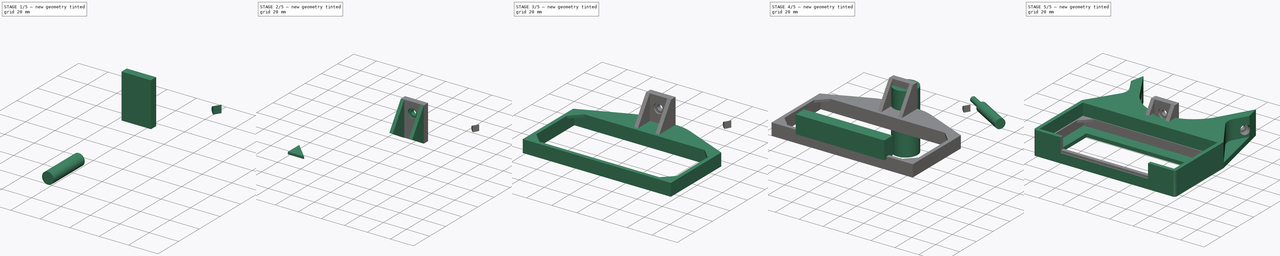
[diagram: build sequence overview — one tinted view per stage of 5, left to right]
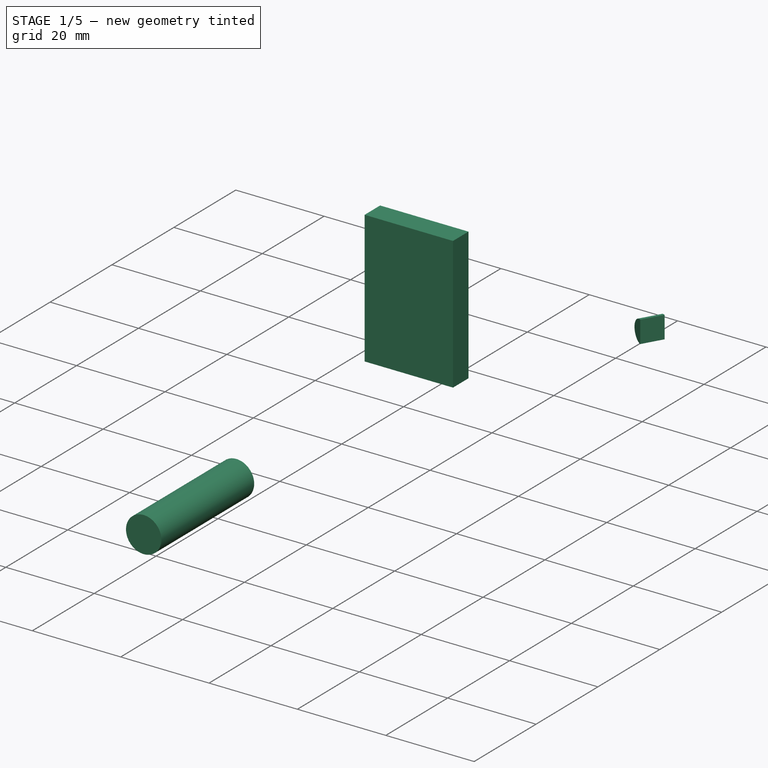
[diagram: stage 1 of 5 — iso view after this stage's code; geometry added in this stage tinted green]
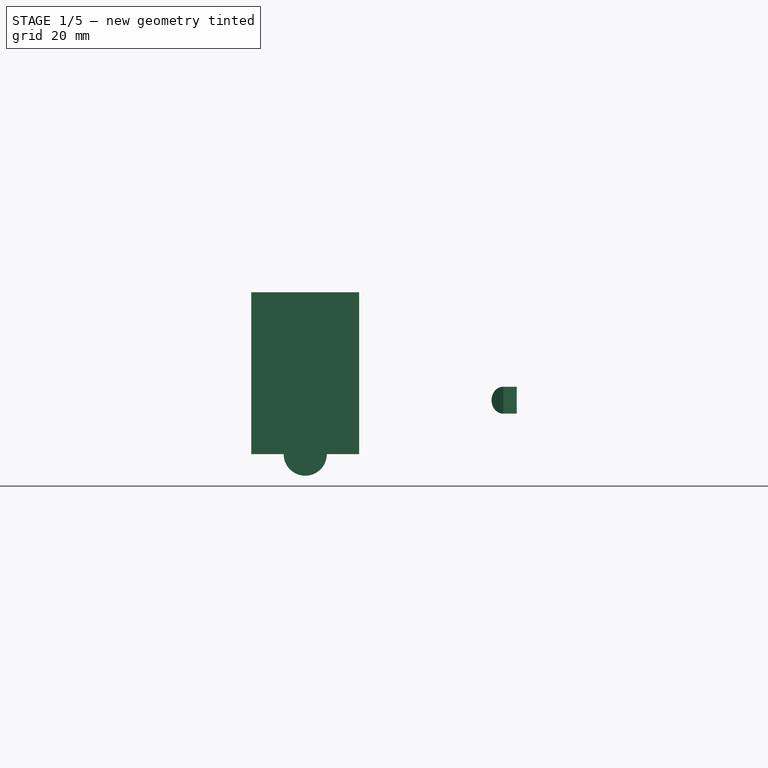
[diagram: stage 1 of 5 — front view after this stage's code; geometry added in this stage tinted green]
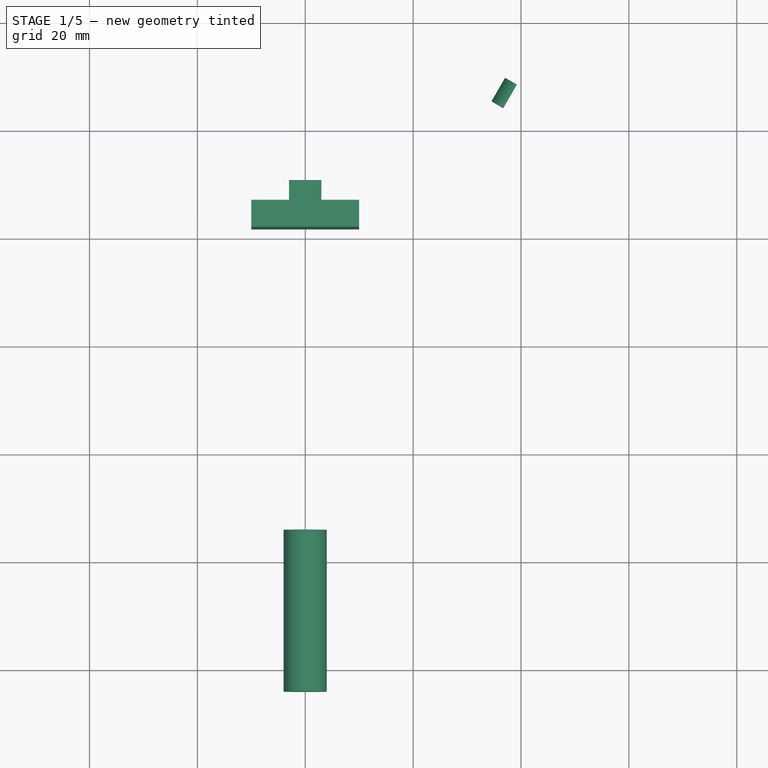
[diagram: stage 1 of 5 — top view after this stage's code; geometry added in this stage tinted green]
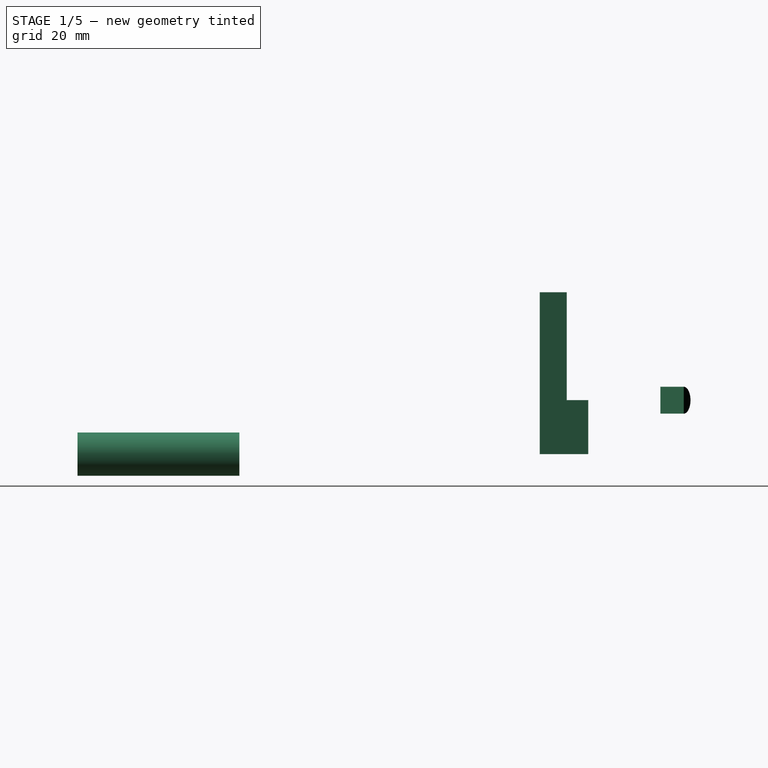
[diagram: stage 1 of 5 — right view after this stage's code; geometry added in this stage tinted green]
FCSTD DOCUMENT  (FreeCAD 0.19R)
Label: psu_holder
License: All rights reserved
LicenseURL: http://en.wikipedia.org/wiki/All_rights_reserved
objects: Part::Box×8, Part::MultiFuse×8, PartDesign::Body×6, Sketcher::SketchObject×5, PartDesign::Pad×5, PartDesign::ShapeBinder×4, Part::Cylinder×4, Part::Mirroring×4, Part::Cut×3, Part::FeaturePython×2, Part::Compound×2, App::Part×2, Spreadsheet::Sheet×1, Part::Fillet×1, PartDesign::FeatureBase×1
note: 56 computed .brp shape members not serialized (recipe doc carries the construction recipe); baked Part::Feature solids carry a one-line shape summary decoded from their .brp

FEATURE [Part::Cylinder] Cylinder001  label="bolt head hole"
  Angle = 360
  AttacherType = Attacher::AttachEngine3D
  Height = 30
  Placement = pos=(0,-14,4e-15) rot=(1,0,0;1.5708rad)
  Radius = 4
  expr: Radius = <<p>>.bolt_head_r
FEATURE [Part::Box] Box004  label="middle external"
  AttacherType = Attacher::AttachEngine3D
  Height = 10
  Length = 118
  Placement = pos=(-59,-28.7,0) rot=(0,0,1;0rad)
  Width = 57.4
  expr: Length = <<p>>.wall * 2 + <<p>>.middle_x
  expr: Width = <<p>>.wall * 2 + <<p>>.middle_y
  expr: .Placement.Base.y = -Width / 2
  expr: .Placement.Base.x = -Length / 2
FEATURE [Part::Box] Box006  label="middle attach cube"
  AttacherType = Attacher::AttachEngine3D
  Height = 30
  Length = 20
  Placement = pos=(-10,0,0) rot=(0,0,1;0rad)
  Width = 5
  expr: Height = <<p>>.middle_attach_height
  expr: .Placement.Base.x = -Length / 2
FEATURE [PartDesign::Body] Body005  label="bolt fusion clone"
  BaseFeature = -> Fusion002
  Group = -> [Clone]
  Origin = -> Origin008
  Placement = pos=(0,57,21) rot=(0,0,1;0rad)
  Tip = -> Clone
FEATURE [Part::Box] Box007  label="middle frame cube"
  AttacherType = Attacher::AttachEngine3D
  Height = 10
  Length = 6
  Placement = pos=(-3,5,0) rot=(0,0,1;0rad)
  Width = 4
  expr: .Placement.Base.y = <<middle attach cube>>.Width
  expr: .Placement.Base.x = -Length / 2
  expr: Height = <<middle external>>.Height
FEATURE [Part::MultiFuse] Fusion008  label="middle attachment fusion"
  Placement = pos=(0,41.7,0) rot=(0,0,1;0rad)
  Shapes = -> [Box007,Box006]
  expr: .Placement.Base.y = <<middle external>>.Width / 2 + <<p>>.middle_frame_dist - <<middle attach cube>>.Width
FEATURE [App::Part] Part001  label="middle part"
  Group = -> [Cut,Body002,Body003,Fusion007,Fusion006,Box004,Box005,Fusion004,Part__Mirroring002,Part__Mirroring001,Fusion005]
  Origin = -> Origin003
FEATURE [Part::Cylinder] Cylinder003  label="frame cylinder"
  Angle = 180
  AttacherType = Attacher::AttachEngine3D
  Height = 5
  Placement = pos=(0,0,0) rot=(0,1,0;1.5708rad)
  Radius = 2.5
FEATURE [Part::Compound] Compound002  label="bolt hole array compound001"
  Links = -> [Cylinder003]
  Placement = pos=(-39.21,68.3921,10) rot=(0,0,-1;1.0472rad)
FEATURE [Part::Mirroring] Part__Mirroring003  label="bolt hole array compound001 (Mirror #4)"
  Base = (0,0,0)
  Normal = (1,0,0)
  Source = -> Compound002
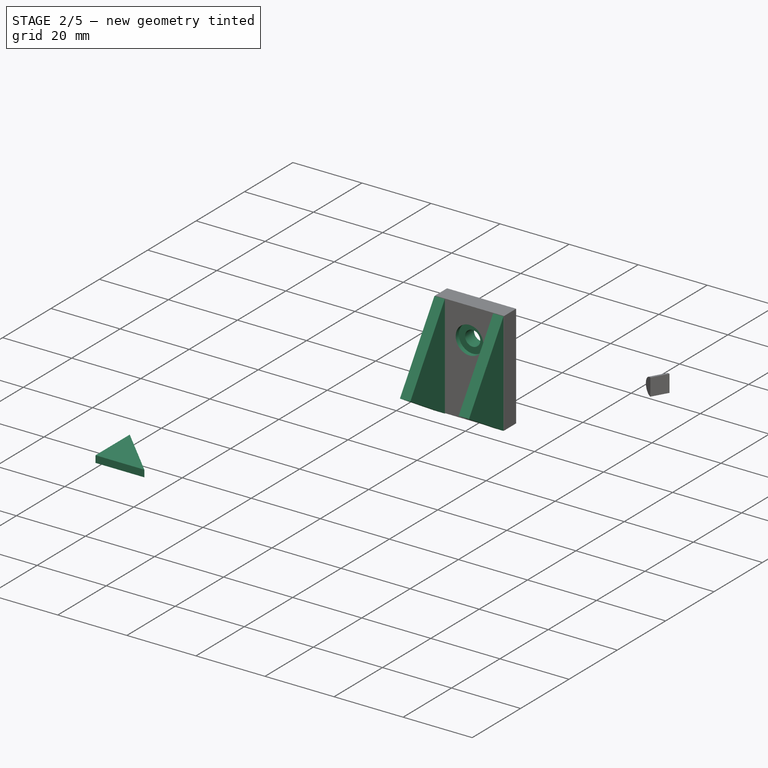
[diagram: stage 2 of 5 — iso view after this stage's code; geometry added in this stage tinted green]
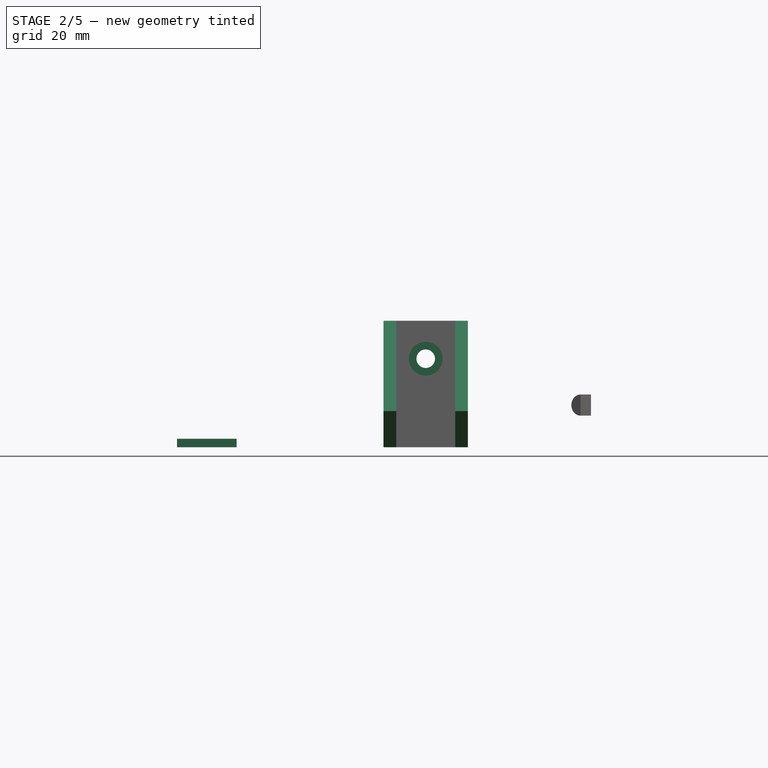
[diagram: stage 2 of 5 — front view after this stage's code; geometry added in this stage tinted green]
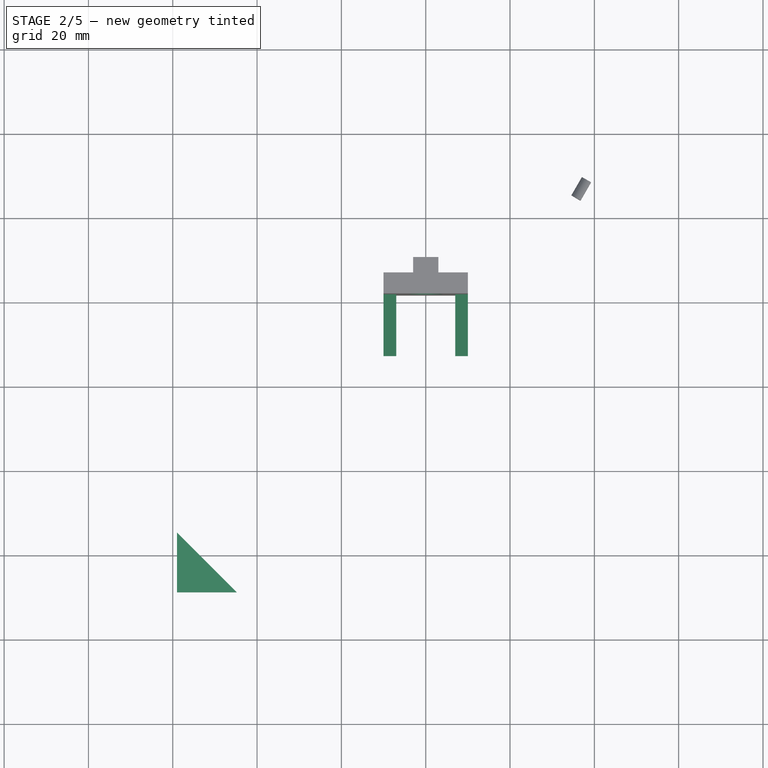
[diagram: stage 2 of 5 — top view after this stage's code; geometry added in this stage tinted green]
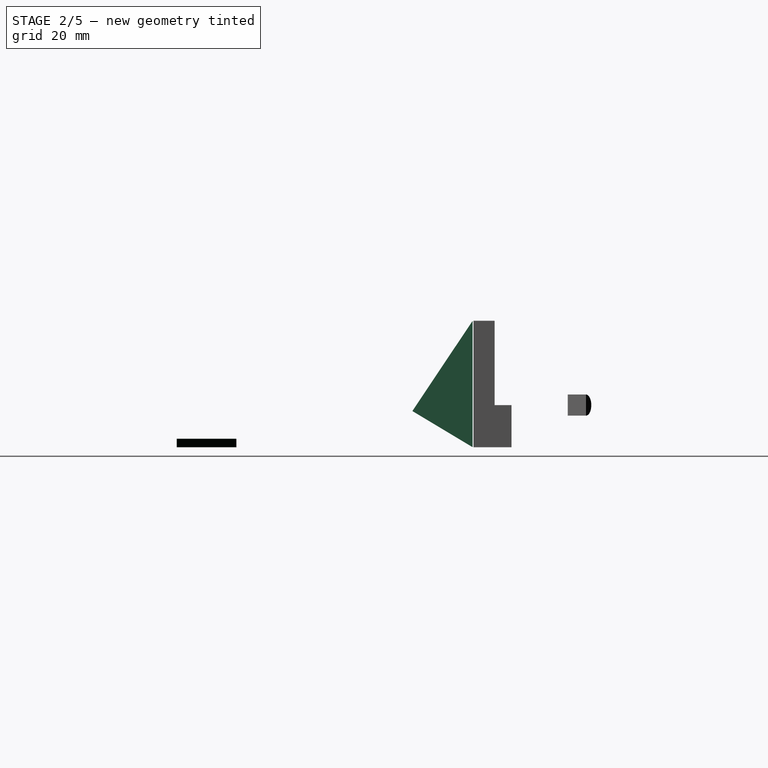
[diagram: stage 2 of 5 — right view after this stage's code; geometry added in this stage tinted green]
FEATURE [Part::Cylinder] Cylinder  label="bolt hole"
  Angle = 360
  AttacherType = Attacher::AttachEngine3D
  Height = 30
  Placement = pos=(0,0,0) rot=(1,0,0;1.5708rad)
  Radius = 2.2
  expr: Radius = <<p>>.bolt_hole_r
FEATURE [Part::MultiFuse] Fusion002  label="bolt hole fusion"
  Shapes = -> [Cylinder,Cylinder001]
FEATURE [PartDesign::Body] Body002  label="middle attach body"
  Group = -> [Sketch002,ShapeBinder001,Pad002]
  Origin = -> Origin005
  Tip = -> Pad002
FEATURE [PartDesign::ShapeBinder] ShapeBinder002
  Support = -> [Box004]
  TraceSupport = false
FEATURE [Sketcher::SketchObject] Sketch003
  ExternalGeometry = -> [ShapeBinder002]
  FullyConstrained = true
  MapMode = 5
  Support = -> [XY_Plane006]
  sketch-geometry (3):
    g0: LineSegment StartX=-59 StartY=-28.7 StartZ=0 EndX=-44.8579 EndY=-28.7 EndZ=0
    g1: LineSegment StartX=-44.8579 StartY=-28.7 StartZ=0 EndX=-59 EndY=-14.5579 EndZ=0
    g2: LineSegment StartX=-59 StartY=-14.5579 StartZ=0 EndX=-59 EndY=-28.7 EndZ=0
  constraints (8):
    c: Horizontal(g0)
    c: Coincident(g1,g0)
    c: Coincident(g2,g1)
    c: Coincident(g2,g0)
    c: Distance(g1) = 20
    c: Equal(g0,g2)
    c: PointOnObject(g1,g-5)
    c: Coincident(g0,g-5)
FEATURE [PartDesign::Pad] Pad003
  Direction = (1,1,1)
  Length = 2
  Length2 = 100
  Profile = -> Sketch003
  Type = 0
FEATURE [PartDesign::FeatureBase] Clone
  BaseFeature = -> Fusion002
FEATURE [PartDesign::ShapeBinder] ShapeBinder003
  Placement = pos=(0,41.7,0) rot=(0,0,1;0rad)
  Support = -> [Fusion008]
  TraceSupport = false
FEATURE [Sketcher::SketchObject] Sketch004
  ExternalGeometry = -> [ShapeBinder003]
  FullyConstrained = false
  MapMode = 5
  Placement = pos=(0,0,0) rot=(0.57735,0.57735,0.57735;2.0944rad)
  Support = -> [YZ_Plane007]
  sketch-geometry (3):
    g0: LineSegment StartX=41.5 StartY=30 StartZ=0 EndX=27.205 EndY=8.57962 EndZ=0
    g1: LineSegment StartX=27.205 StartY=8.57962 StartZ=0 EndX=41.5 EndY=0 EndZ=0
    g2: LineSegment StartX=41.5 StartY=0 StartZ=0 EndX=41.5 EndY=30 EndZ=0
  constraints (1):
    c: Coincident(g1,g0)
FEATURE [PartDesign::Pad] Pad004
  Direction = (1,1,1)
  Length = 3
  Length2 = 100
  Placement = pos=(0,0,0) rot=(0.57735,0.57735,0.57735;2.0944rad)
  Profile = -> Sketch004
  Type = 0
FEATURE [PartDesign::Body] Body004
  Group = -> [Sketch004,ShapeBinder003,Pad004]
  Origin = -> Origin007
  Tip = -> Pad004
FEATURE [Part::FeaturePython] Array001  label="triangles array"  # Draft array (typed FeaturePython)
  Angle = 360
  ArrayType = 0
  Axis = (0,0,1)
  Base = -> Body004
  Center = (0,0,0)
  Count = 2
  ExpandArray = false
  Fuse = false
  IntervalAxis = (0,0,0)
  IntervalX = (17,0,0)
  IntervalY = (0,100,0)
  IntervalZ = (0,0,100)
  NumberCircles = 3
  NumberPolar = 5
  NumberX = 2
  NumberY = 1
  NumberZ = 1
  Placement = pos=(-10,0,0) rot=(0,0,1;0rad)
  PlacementList = 2 placements: [(0,0,0),(17,0,0)]
  RadialDistance = 50
  ScaleList = (2) [(1,1,1),(1,1,1)]
  Symmetry = 1
  TangentialDistance = 25
FEATURE [Part::Cut] Cut002  label="middle attach cut"
  Base = -> Fusion008
  Tool = -> Body005
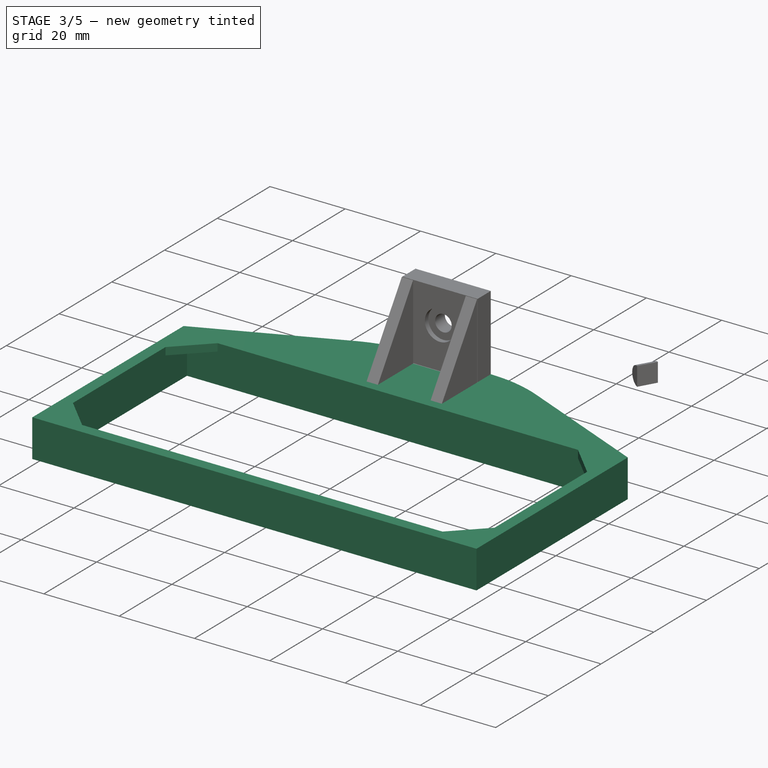
[diagram: stage 3 of 5 — iso view after this stage's code; geometry added in this stage tinted green]
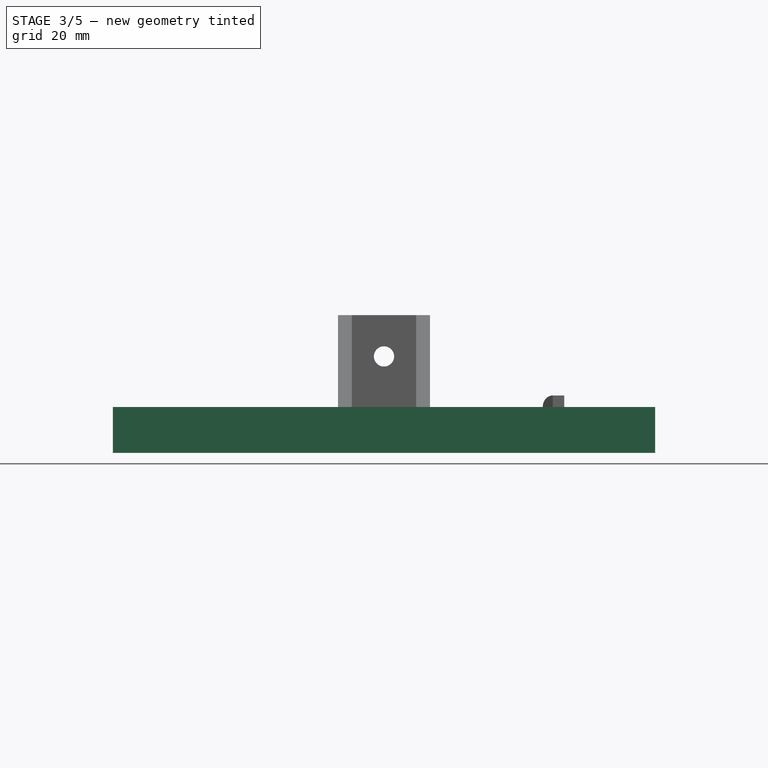
[diagram: stage 3 of 5 — front view after this stage's code; geometry added in this stage tinted green]
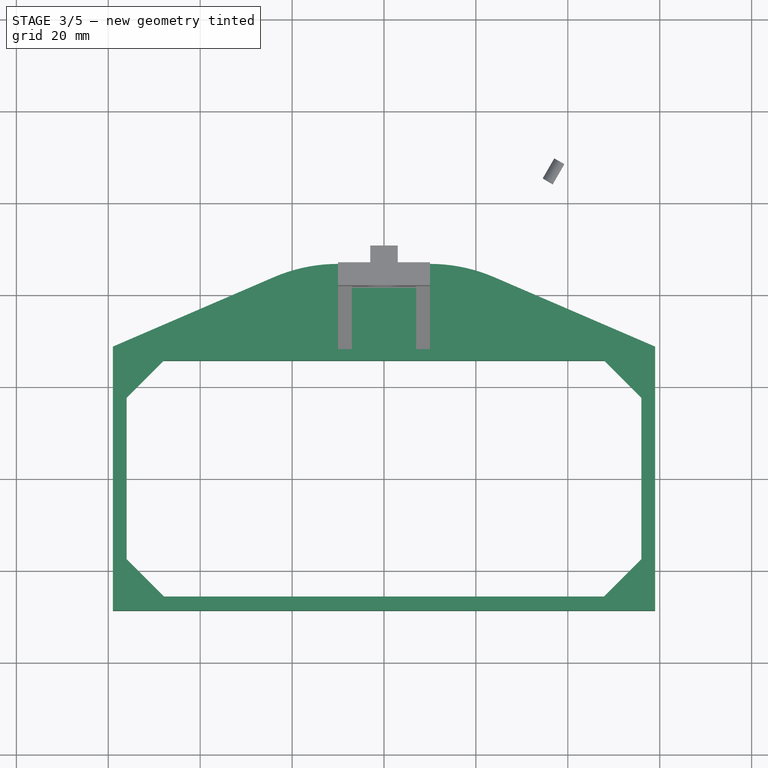
[diagram: stage 3 of 5 — top view after this stage's code; geometry added in this stage tinted green]
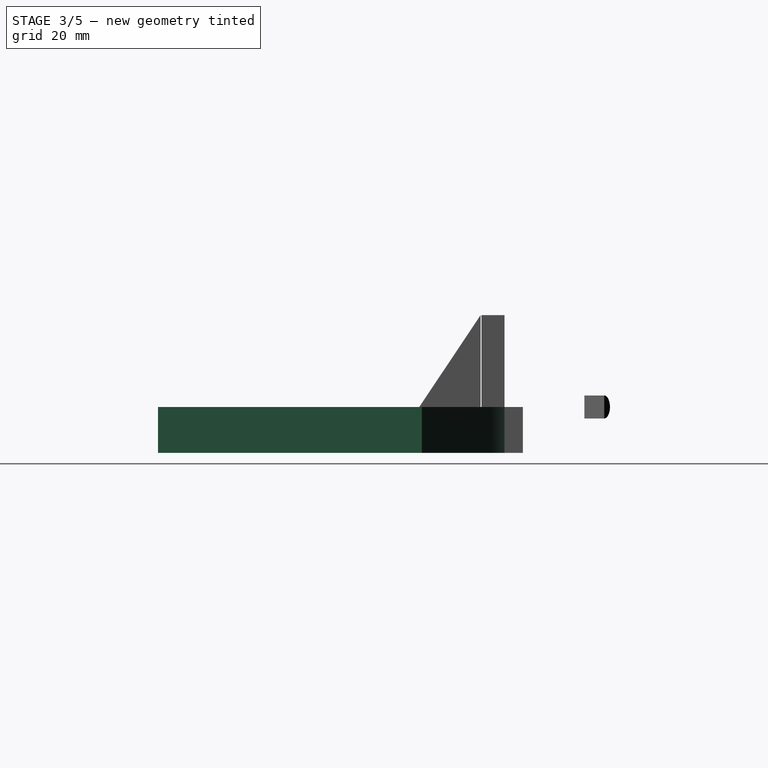
[diagram: stage 3 of 5 — right view after this stage's code; geometry added in this stage tinted green]
FEATURE [Part::Box] Box005  label="middle pocket cube"
  AttacherType = Attacher::AttachEngine3D
  Height = 10
  Length = 112
  Placement = pos=(-56,-25.7,0) rot=(0,0,1;0rad)
  Width = 51.4
  expr: Length = <<p>>.middle_x
  expr: Width = <<p>>.middle_y
  expr: .Placement.Base.x = -Length / 2
  expr: .Placement.Base.y = -Width / 2
  expr: Height = <<middle external>>.Height
FEATURE [PartDesign::ShapeBinder] ShapeBinder001
  Placement = pos=(-59,-28.7,0) rot=(0,0,1;0rad)
  Support = -> [Box004]
  TraceSupport = false
FEATURE [Sketcher::SketchObject] Sketch002
  ExternalGeometry = -> [ShapeBinder001]
  FullyConstrained = false
  MapMode = 5
  Support = -> [XY_Plane005]
  expr: Constraints[13] = <<p>>.middle_frame_dist
  sketch-geometry (8):
    g0: LineSegment StartX=-59 StartY=28.7 StartZ=0 EndX=59 EndY=28.7 EndZ=0
    g1: LineSegment StartX=59 StartY=28.7 StartZ=0 EndX=23.9427 EndY=43.8212 EndZ=0
    g2: LineSegment StartX=10 StartY=46.7 StartZ=0 EndX=-10 EndY=46.7 EndZ=0
    g3: LineSegment StartX=-23.9427 StartY=43.8212 StartZ=0 EndX=-59 EndY=28.7 EndZ=0
    g4: ArcOfCircle CenterX=-10 CenterY=11.4964 CenterZ=0 NormalX=0 NormalY=0 NormalZ=1 AngleXU=0 Radius=35.2036 StartAngle=1.5708 EndAngle=1.97802
    g5: ArcOfCircle CenterX=10 CenterY=11.4964 CenterZ=0 NormalX=0 NormalY=0 NormalZ=1 AngleXU=0 Radius=35.2036 StartAngle=1.16358 EndAngle=1.5708
    g6: GeomPoint X=0 Y=28.7 Z=0
    g7: GeomPoint X=0 Y=46.7 Z=0
  constraints (15):
    c: Coincident(g0,g-3)
    c: Coincident(g0,g-3)
    c: Coincident(g1,g0)
    c: Coincident(g3,g0)
    c: Tangent(g3,g4) = -1.5708
    c: Tangent(g2,g4) = -1.5708
    c: Tangent(g2,g5) = -1.5708
    c: Tangent(g1,g5) = -1.5708
    c: Symmetric(g3,g1,g-2)
    c: PointOnObject(g6,g0)
    c: PointOnObject(g6,g-2)
    c: PointOnObject(g7,g2)
    c: PointOnObject(g7,g-2)
    c: DistanceY(g6,g7) = 18
    c: DistanceX(g2,g2) = 20
FEATURE [PartDesign::Pad] Pad002
  Direction = (1,1,1)
  Length = 10
  Length2 = 100
  Profile = -> Sketch002
  Type = 0
  expr: Length = <<middle external>>.Height
FEATURE [PartDesign::Body] Body003
  Group = -> [Sketch003,ShapeBinder002,Pad003]
  Origin = -> Origin006
  Tip = -> Pad003
FEATURE [Part::Mirroring] Part__Mirroring001  label="Body003 (Mirror #2)"
  Base = (0,0,0)
  Normal = (0,1,0)
  Source = -> Body003
FEATURE [Part::MultiFuse] Fusion005
  Shapes = -> [Body003,Part__Mirroring001]
FEATURE [Part::Mirroring] Part__Mirroring002  label="Fusion005 (Mirror #3)"
  Base = (0,0,0)
  Normal = (1,0,0)
  Source = -> Fusion005
FEATURE [Part::MultiFuse] Fusion006  label="corners fusion"
  Placement = pos=(0,0,8) rot=(0,0,1;0rad)
  Shapes = -> [Part__Mirroring002,Fusion005]
  expr: .Placement.Base.z = <<middle external>>.Height - Pad003.Length
FEATURE [Part::MultiFuse] Fusion004  label="middle fusion"
  Shapes = -> [Body002,Box004,Array001,Cut002]
FEATURE [Part::Cut] Cut  label="middle cut"
  Base = -> Fusion004
  Tool = -> Box005
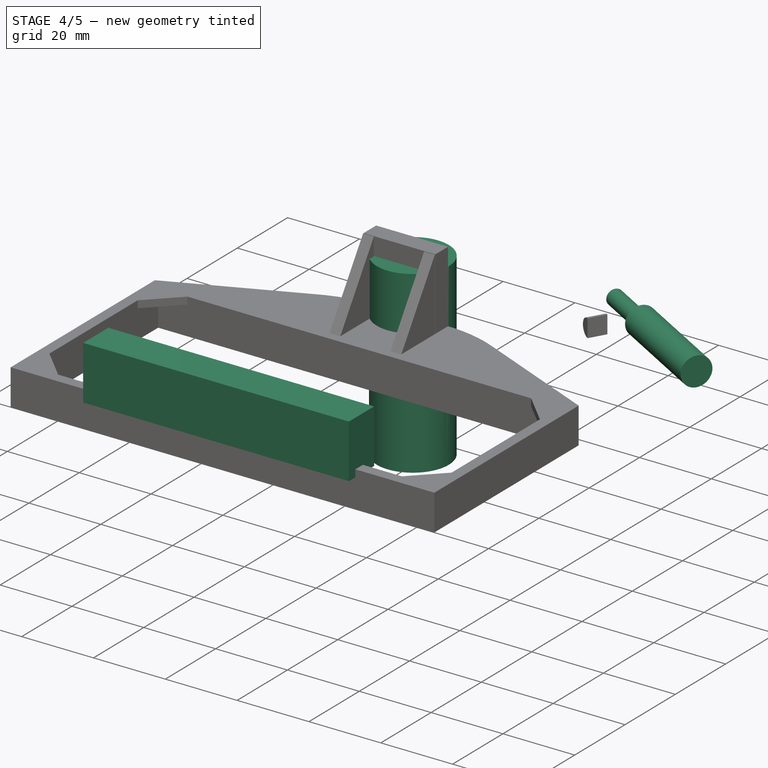
[diagram: stage 4 of 5 — iso view after this stage's code; geometry added in this stage tinted green]
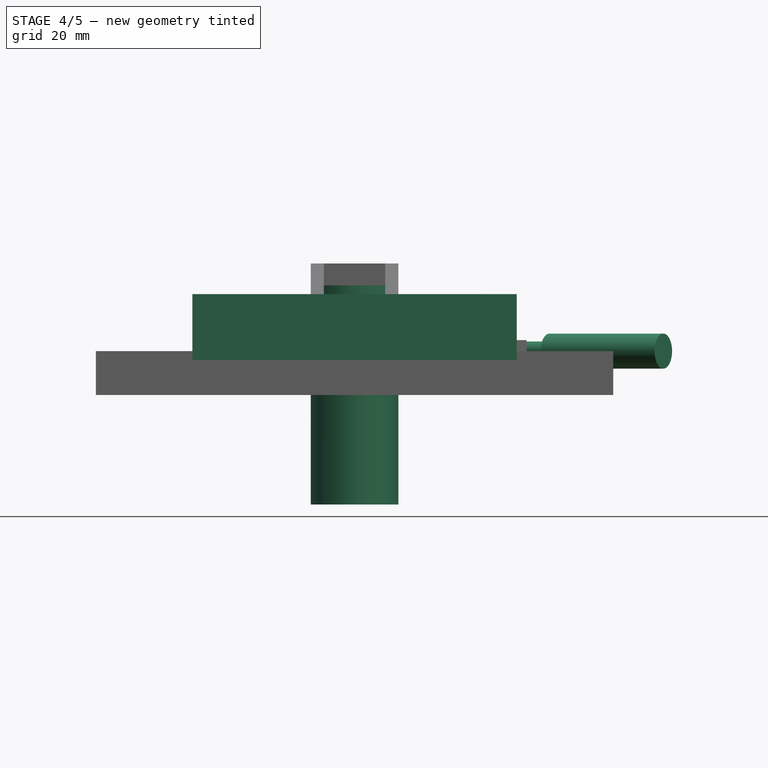
[diagram: stage 4 of 5 — front view after this stage's code; geometry added in this stage tinted green]
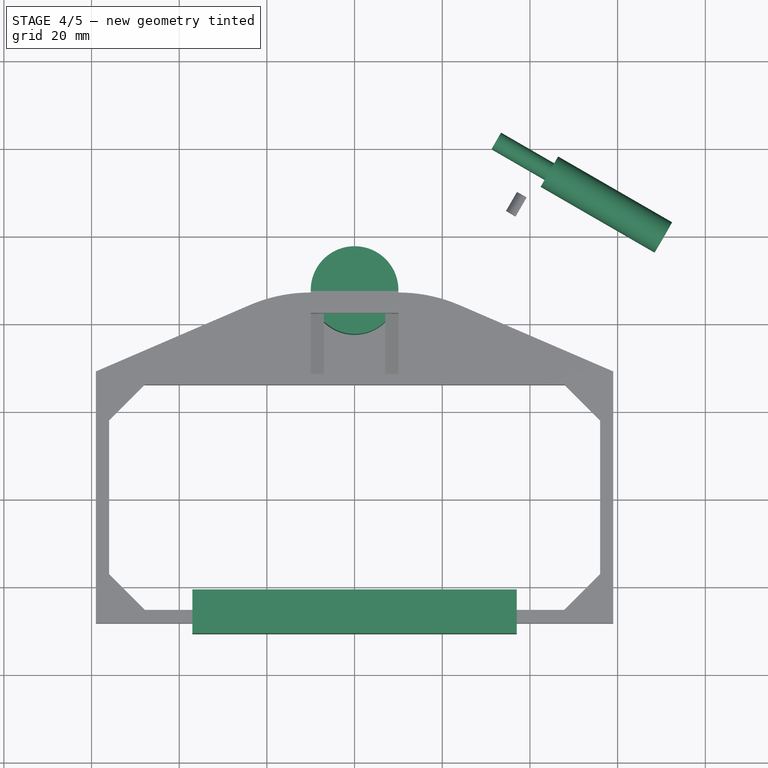
[diagram: stage 4 of 5 — top view after this stage's code; geometry added in this stage tinted green]
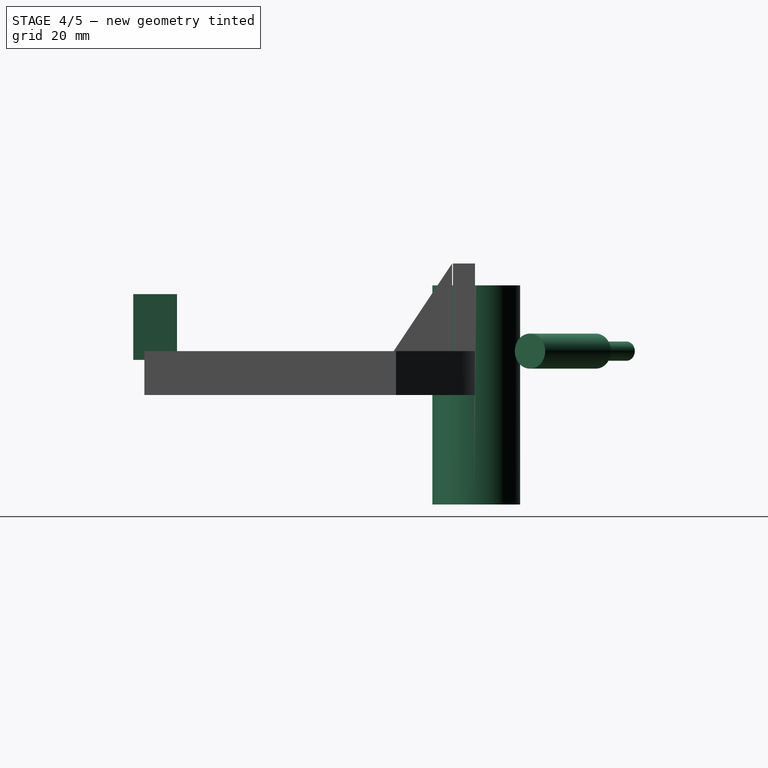
[diagram: stage 4 of 5 — right view after this stage's code; geometry added in this stage tinted green]
FEATURE [PartDesign::Body] Body  label="bottom_body"
  Group = -> [Sketch,Pad]
  Origin = -> Origin001
  Tip = -> Pad
FEATURE [Part::Box] Box  label="externall wall"
  AttacherType = Attacher::AttachEngine3D
  Height = 20
  Length = 120
  Placement = pos=(-60,-29.25,0) rot=(0,0,1;0rad)
  Width = 58.5
  expr: Height = <<p>>.bottom_z + <<p>>.box_pocket_height
  expr: Length = <<p>>.wall * 2 + <<p>>.bottom_x
  expr: Width = <<p>>.wall * 2 + <<p>>.bottom_y
  expr: .Placement.Base.x = -Length / 2
  expr: .Placement.Base.y = -Width / 2
FEATURE [Part::Box] Box003  label="switch pocket"
  AttacherType = Attacher::AttachEngine3D
  Height = 15
  Length = 74
  Placement = pos=(-37,-31.25,8) rot=(0,0,1;0rad)
  Width = 10
  expr: .Placement.Base.y = -(<<p>>.bottom_y + Width) / 2
  expr: Length = <<p>>.bottom_x - 40mm
  expr: .Placement.Base.x = -Length / 2
  expr: Height = <<externall wall>>.Height - 5mm
  expr: .Placement.Base.z = <<p>>.bottom_z + 5mm
FEATURE [Part::FeaturePython] Array  label="bolt hole array"  # Draft array (typed FeaturePython)
  Angle = 360
  ArrayType = 0
  Axis = (0,0,1)
  Base = -> Fusion002
  Center = (0,0,0)
  Count = 1
  ExpandArray = false
  Fuse = false
  IntervalAxis = (0,0,0)
  IntervalX = (12,0,0)
  IntervalY = (0,100,0)
  IntervalZ = (0,0,100)
  NumberCircles = 3
  NumberPolar = 5
  NumberX = 1
  NumberY = 1
  NumberZ = 1
  PlacementList = 1 placements: [(0,0,0)]
  RadialDistance = 50
  ScaleList = (1) [(1,1,1)]
  Symmetry = 1
  TangentialDistance = 25
FEATURE [Part::Compound] Compound001  label="bolt hole array compound"
  Links = -> [Array]
  Placement = pos=(-32.3149,81.2568,10) rot=(0,0,-1;1.0472rad)
FEATURE [Part::Mirroring] Part__Mirroring  label="bolt hole array compound (Mirror #1)"
  Base = (0,0,0)
  Normal = (1,0,0)
  Source = -> Compound001
FEATURE [Part::Cylinder] Cylinder002  label="center remove cylinder"
  Angle = 360
  AttacherType = Attacher::AttachEngine3D
  Height = 50
  Placement = pos=(0,47,-25) rot=(0,0,1;0rad)
  Radius = 10
  expr: .Placement.Base.z = -Height / 2
FEATURE [Part::MultiFuse] Fusion007  label="middle with corners"
  Shapes = -> [Cut,Fusion006]
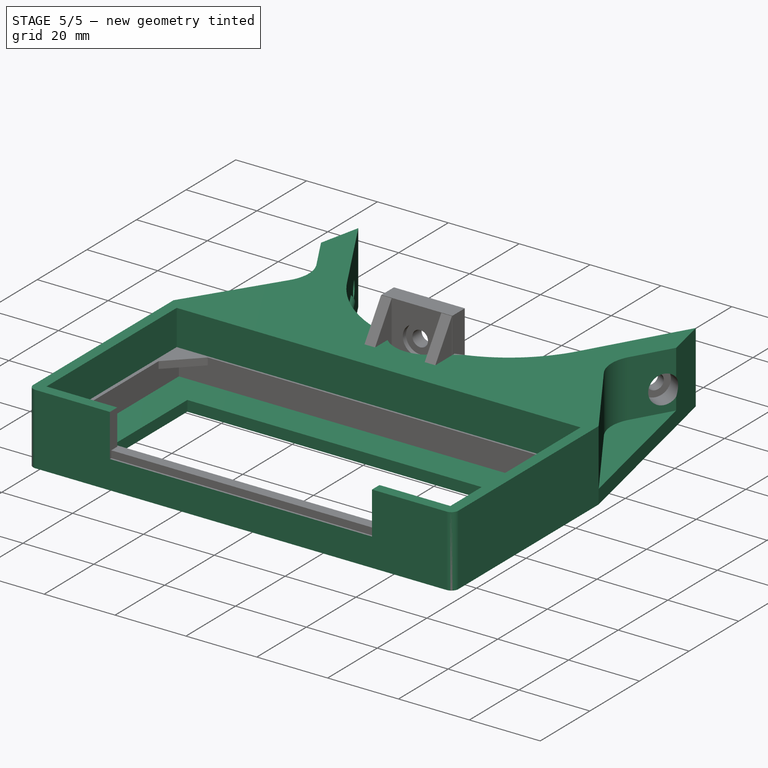
[diagram: stage 5 of 5 — iso view after this stage's code; geometry added in this stage tinted green]
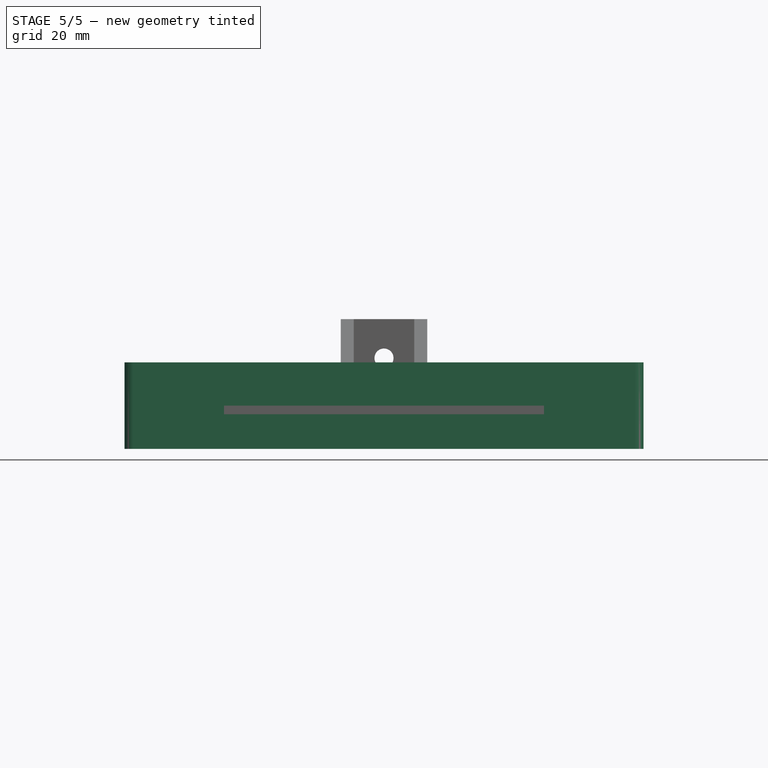
[diagram: stage 5 of 5 — front view after this stage's code; geometry added in this stage tinted green]
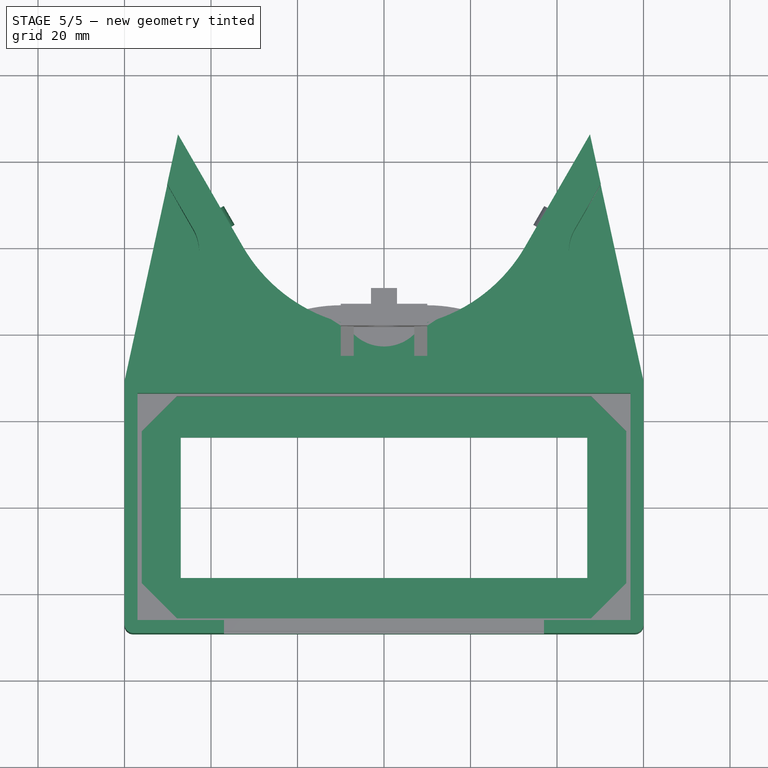
[diagram: stage 5 of 5 — top view after this stage's code; geometry added in this stage tinted green]
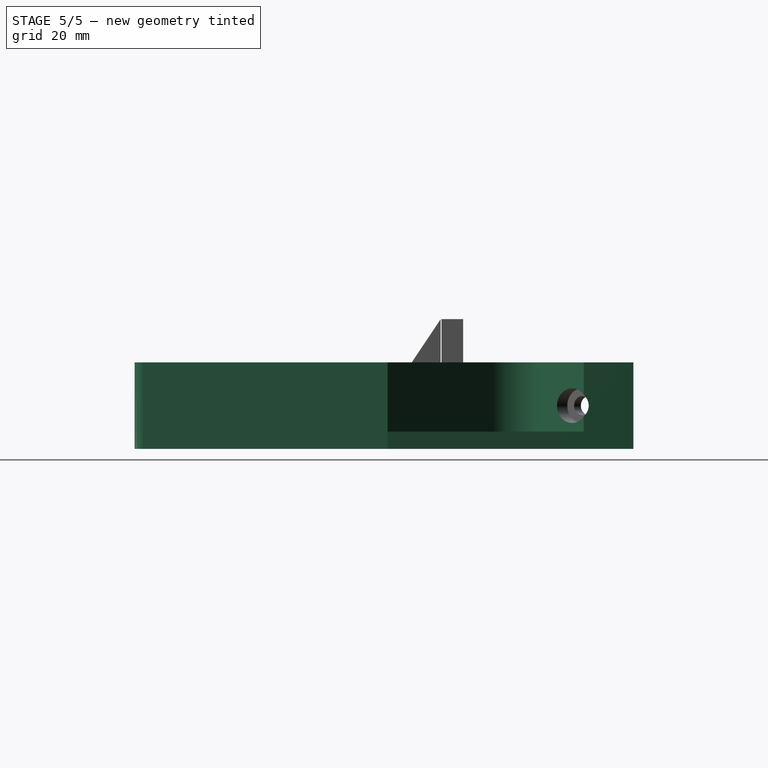
[diagram: stage 5 of 5 — right view after this stage's code; geometry added in this stage tinted green]
FEATURE [Spreadsheet::Sheet] Spreadsheet  label="p"
  cells = A1=bottom_x; B1(bottom_x)==114mm; A2=bottom_y; B2(bottom_y)==52.5mm; A3=bottom_z; B3(bottom_z)==3mm; A4=box_pocket_height; B4(box_pocket_height)==17mm; A5=wall; B5(wall)==3mm; A6=pad; B6(pad)==10mm; A7=bolt_hole_r; B7(bolt_hole_r)==2.2mm; A8=bolt_head_r; B8(bolt_head_r)==4mm; A9=bottom_wall; B9(bottom_wall)==4mm; A10=middle_x; B10(middle_x)==112mm; A11=middle_y; B11(middle_y)==51.4mm; A12=middle_z; B12(middle_z)==10mm; A13=middle_frame_dist; B13(middle_frame_dist)==18mm; A14=middle_attach_height; B14(middle_attach_height)==30mm
FEATURE [Sketcher::SketchObject] Sketch
  FullyConstrained = true
  MapMode = 5
  Support = -> [XY_Plane001]
  expr: Constraints[14] = <<p>>.bottom_y / 2 + <<p>>.wall
  expr: Constraints[8] = <<p>>.bottom_x + <<p>>.wall * 2
  expr: Constraints[13] = 15mm - <<p>>.wall
  sketch-geometry (7):
    g0: LineSegment StartX=-60 StartY=29.25 StartZ=0 EndX=60 EndY=29.25 EndZ=0
    g1: LineSegment StartX=-32.625 StartY=60.0861 StartZ=0 EndX=-47.625 EndY=86.0668 EndZ=0
    g2: LineSegment StartX=32.625 StartY=60.0861 StartZ=0 EndX=47.625 EndY=86.0668 EndZ=0
    g3: ArcOfCircle CenterX=1.2e-15 CenterY=78.9221 CenterZ=0 NormalX=0 NormalY=0 NormalZ=1 AngleXU=0 Radius=37.6721 StartAngle=3.66519 EndAngle=5.75959
    g4: GeomPoint X=0 Y=41.25 Z=0
    g5: LineSegment StartX=60 StartY=29.25 StartZ=0 EndX=47.625 EndY=86.0668 EndZ=0
    g6: LineSegment StartX=-60 StartY=29.25 StartZ=0 EndX=-47.625 EndY=86.0668 EndZ=0
  constraints (17):
    c: Symmetric(g6,g5,g-2)
    c: Angle(g2,g1) = 1.0472
    c: Tangent(g3,g2) = -1.5708
    c: Tangent(g3,g1) = 1.5708
    c: Symmetric(g1,g2,g-2)
    c: PointOnObject(g4,g-2)
    c: PointOnObject(g4,g3)
    c: Equal(g2,g1)
    c: DistanceX(g6,g5) = 120
    c: Coincident(g5,g2)
    c: Coincident(g6,g1)
    c: DistanceX(g1,g2) = 65.25
    c: Distance(g1) = 30
    c: DistanceY(g5,g4) = 12
    c: DistanceY(g-1,g6) = 29.25
    c: Coincident(g0,g5)
    c: Coincident(g0,g6)
FEATURE [PartDesign::Pad] Pad
  Direction = (1,1,1)
  Length = 4
  Length2 = 100
  Profile = -> Sketch
  Type = 0
  expr: Length = <<p>>.bottom_wall
FEATURE [Part::Box] Box001  label="pocketl cube"
  AttacherType = Attacher::AttachEngine3D
  Height = 20
  Length = 114
  Placement = pos=(-57,-26.25,3) rot=(0,0,1;0rad)
  Width = 52.5
  expr: .Placement.Base.z = <<p>>.bottom_z
  expr: Height = <<externall wall>>.Height
  expr: .Placement.Base.y = -Width / 2
  expr: .Placement.Base.x = -Length / 2
  expr: Width = <<p>>.bottom_y
  expr: Length = <<p>>.bottom_x
FEATURE [Part::Fillet] Fillet  label="external wall fillet"
  Base = -> Box
  Edges = 2 edges r=2: [Edge1,Edge5]
FEATURE [PartDesign::ShapeBinder] ShapeBinder
  Support = -> [Pad]
  TraceSupport = false
FEATURE [Sketcher::SketchObject] Sketch001
  ExternalGeometry = -> [ShapeBinder]
  FullyConstrained = false
  MapMode = 5
  Support = -> [XY_Plane002]
  sketch-geometry (14):
    g0: LineSegment StartX=-47.625 StartY=86.0668 StartZ=0 EndX=-32.625 EndY=60.0861 EndZ=0
    g1: LineSegment StartX=32.625 StartY=60.0861 StartZ=0 EndX=47.625 EndY=86.0668 EndZ=0
    g2: ArcOfCircle CenterX=-6.6e-15 CenterY=78.9221 CenterZ=0 NormalX=0 NormalY=0 NormalZ=1 AngleXU=0 Radius=37.6721 StartAngle=3.66519 EndAngle=5.75959
    g3: GeomPoint X=-50.1236 Y=74.5953 Z=0
    g4: GeomPoint X=50.1236 Y=74.5953 Z=0
    g5: LineSegment StartX=-50.1236 StartY=74.5953 StartZ=0 EndX=-44.0944 EndY=64.1525 EndZ=0
    g6: LineSegment StartX=44.0944 StartY=64.1525 StartZ=0 EndX=50.1236 EndY=74.5953 EndZ=0
    g7: LineSegment StartX=-50.1236 StartY=74.5953 StartZ=0 EndX=-47.625 EndY=86.0668 EndZ=0
    g8: LineSegment StartX=50.1236 StartY=74.5953 StartZ=0 EndX=47.625 EndY=86.0668 EndZ=0
    g9: LineSegment StartX=-44.3339 StartY=53.7182 StartZ=0 EndX=-60 EndY=29.25 EndZ=0
    g10: LineSegment StartX=44.3339 StartY=53.7182 StartZ=0 EndX=60 EndY=29.25 EndZ=0
    g11: LineSegment StartX=60 StartY=29.25 StartZ=0 EndX=-60 EndY=29.25 EndZ=0
    g12: ArcOfCircle CenterX=-52.7898 CenterY=59.1322 CenterZ=0 NormalX=0 NormalY=0 NormalZ=1 AngleXU=0 Radius=10.0406 StartAngle=5.71369 EndAngle=6.80678
    g13: ArcOfCircle CenterX=52.7898 CenterY=59.1322 CenterZ=0 NormalX=0 NormalY=0 NormalZ=1 AngleXU=0 Radius=10.0406 StartAngle=2.61799 EndAngle=3.71109
  constraints (25):
    c: Tangent(g2,g1) = -1.5708
    c: Coincident(g3,g5)
    c: Coincident(g6,g4)
    c: Parallel(g5,g0)
    c: Coincident(g7,g5)
    c: Coincident(g7,g0)
    c: Coincident(g8,g6)
    c: Coincident(g8,g1)
    c: Coincident(g0,g2)
    c: Coincident(g1,g-4)
    c: Coincident(g1,g-3)
    c: Coincident(g-6,g0)
    c: Coincident(g0,g-5)
    c: PointOnObject(g5,g-7)
    c: PointOnObject(g6,g-8)
    c: Coincident(g9,g-7)
    c: Coincident(g10,g-8)
    c: Coincident(g11,g10)
    c: Coincident(g11,g9)
    c: Tangent(g5,g12) = 1.5708
    c: Tangent(g9,g12) = 1.5708
    c: Tangent(g6,g13) = 1.5708
    c: Tangent(g10,g13) = -1.5708
    c: Symmetric(g9,g10,g-2)
    c: Symmetric(g5,g6,g-2)
FEATURE [PartDesign::Pad] Pad001
  Direction = (1,1,1)
  Length = 20
  Length2 = 100
  Profile = -> Sketch001
  Type = 0
FEATURE [PartDesign::Body] Body001  label="bolt wall body"
  Group = -> [Sketch001,Pad001,ShapeBinder]
  Origin = -> Origin002
  Tip = -> Pad001
FEATURE [Part::Box] Box002  label="hole through pocketl cube"
  AttacherType = Attacher::AttachEngine3D
  Height = 20
  Length = 94
  Placement = pos=(-47,-16.25,0) rot=(0,0,1;0rad)
  Width = 32.5
  expr: Length = <<p>>.bottom_x - <<p>>.pad * 2
  expr: Width = <<p>>.bottom_y - 2 * <<p>>.pad
  expr: .Placement.Base.x = -Length / 2
  expr: .Placement.Base.y = -Width / 2
  expr: Height = <<externall wall>>.Height - <<externall wall>>.Placement.Base.z
FEATURE [Part::MultiFuse] Fusion003  label="extract fusion"
  Shapes = -> [Compound001,Part__Mirroring,Box001,Box002,Box003,Cylinder002]
FEATURE [Part::MultiFuse] Fusion  label="body fusion"
  Shapes = -> [Fillet,Body,Body001,Compound002,Part__Mirroring003]
FEATURE [Part::Cut] Cut001  label="bolt wall body cut"
  Base = -> Fusion
  Tool = -> Fusion003
FEATURE [App::Part] Part  label="bottom part"
  Group = -> [Cut001]
  Origin = -> Origin
  Placement = pos=(0,0,-100) rot=(0,0,1;0rad)
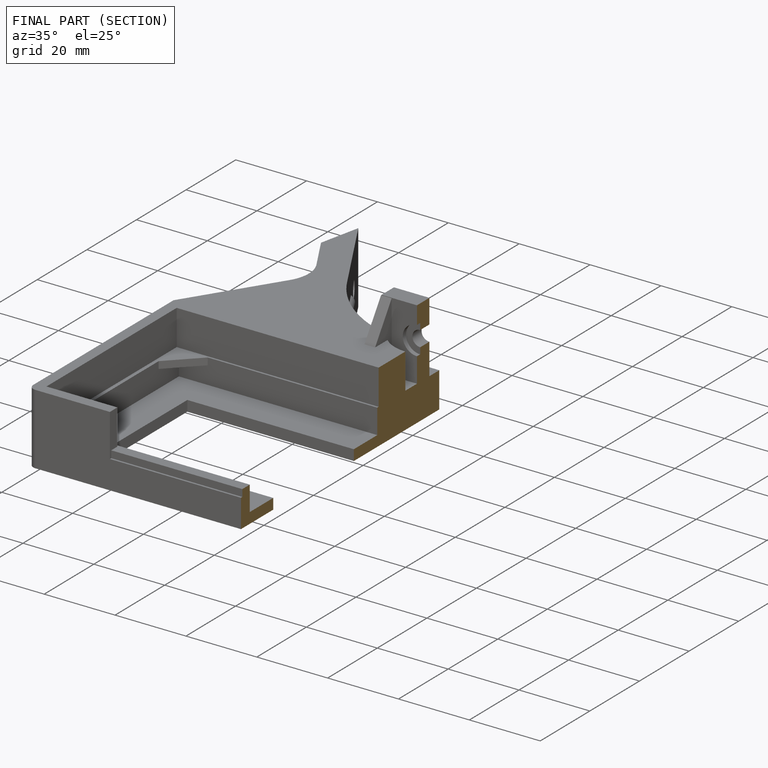
[diagram: finished part — half-section view (interior)]
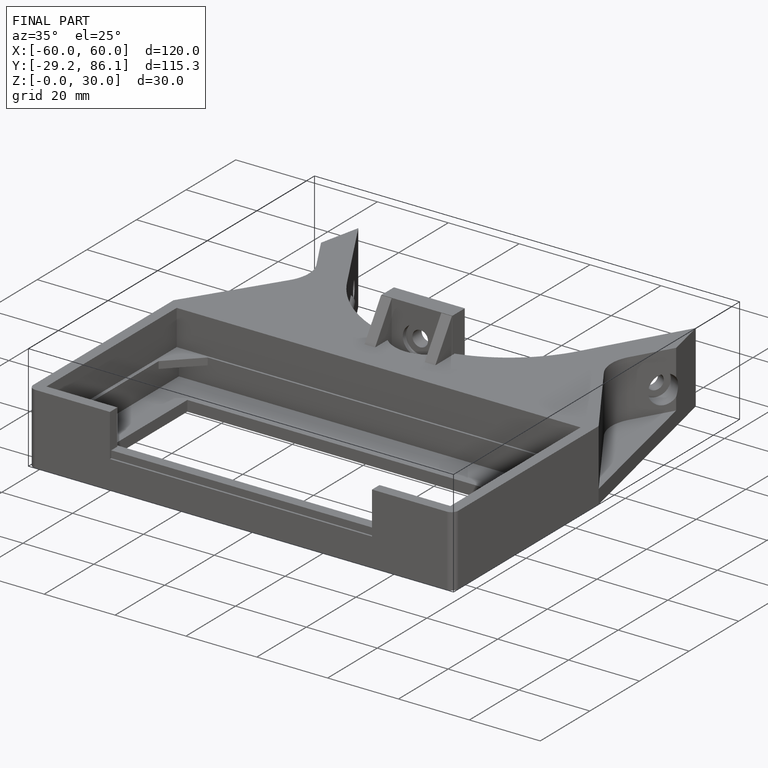
[diagram: finished part — iso view with bounding-box wireframe]
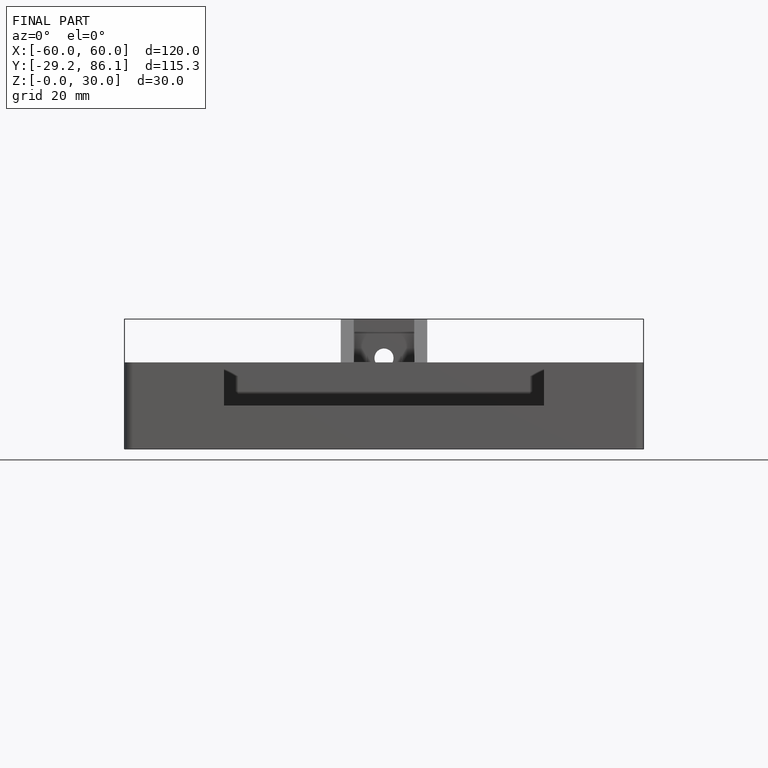
[diagram: finished part — front view with bounding-box wireframe]
